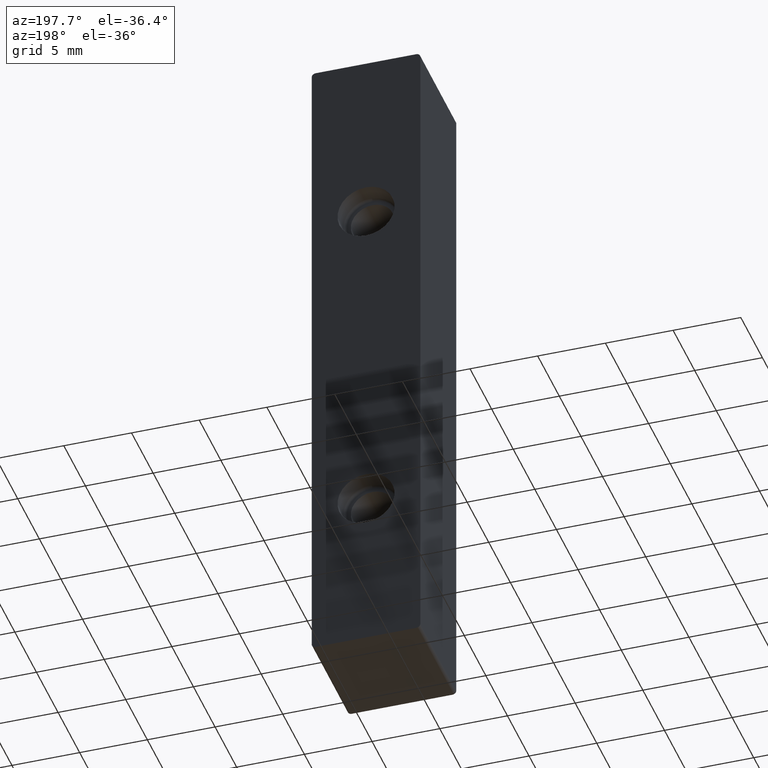
[diagram: clean part render]
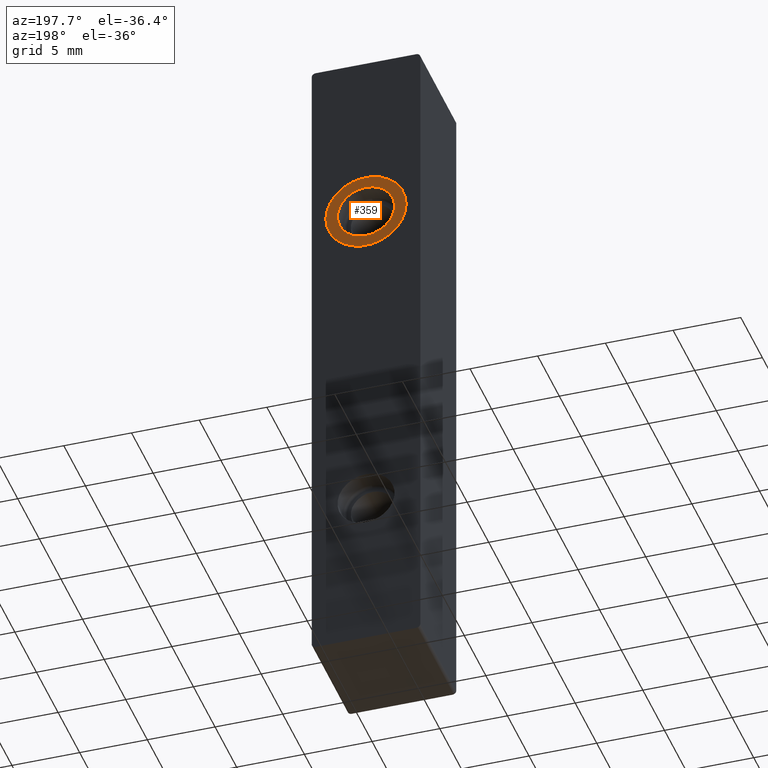
[diagram: same view with one face highlighted and labeled with its STEP entity id]
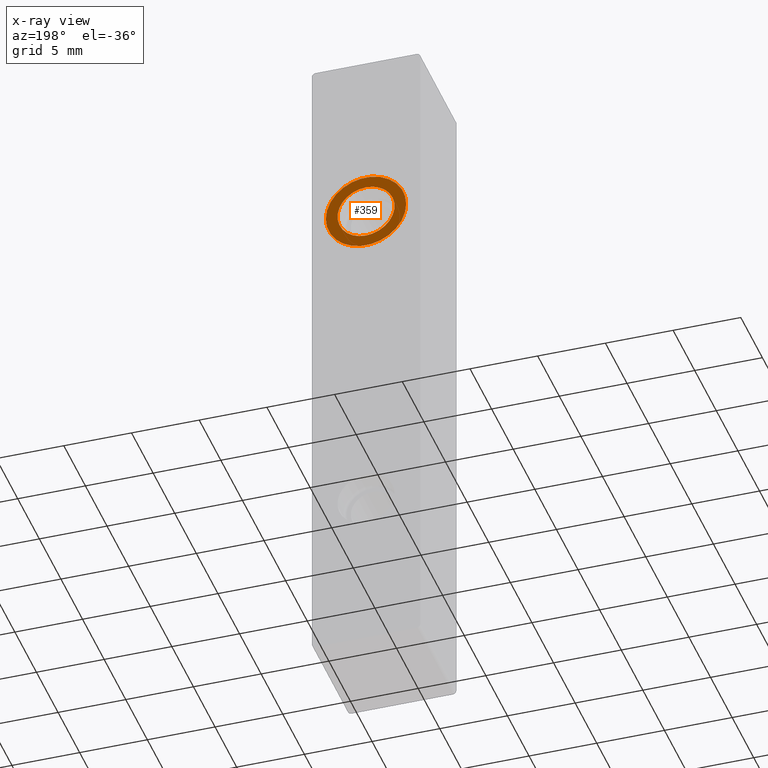
[diagram: x-ray of the same camera — body ghosted, the highlighted face saturated]
A machine part, auxiliary view. The second image highlights one B-rep face of the part: STEP entity #359.
The next image is the same camera in x-ray: the body ghosted, the highlighted face saturated — about 0% of this face is hidden behind the body in this view.
In plain terms, the highlighted planar face has unit normal (0, -1, 0).
Its self-contained STEP definition (entity closure, byte-faithful):
#32=FACE_BOUND('',#82,.T.);
#53=FACE_OUTER_BOUND('',#81,.T.);
#81=EDGE_LOOP('',(#326));
#82=EDGE_LOOP('',(#327));
#147=CIRCLE('',#408,2.106225291135);
#153=CIRCLE('',#418,2.96442687);
#177=VERTEX_POINT('',#603);
#183=VERTEX_POINT('',#623);
#217=EDGE_CURVE('',#177,#177,#147,.T.);
#227=EDGE_CURVE('',#183,#183,#153,.T.);
#326=ORIENTED_EDGE('',*,*,#227,.T.);
#327=ORIENTED_EDGE('',*,*,#217,.T.);
#338=PLANE('',#425);
#359=ADVANCED_FACE('',(#53,#32),#338,.F.);
#408=AXIS2_PLACEMENT_3D('',#604,#494,#495);
#418=AXIS2_PLACEMENT_3D('',#624,#518,#519);
#425=AXIS2_PLACEMENT_3D('',#639,#537,#538);
#494=DIRECTION('center_axis',(0.,-1.,0.));
#495=DIRECTION('ref_axis',(0.,0.,-1.));
#518=DIRECTION('center_axis',(0.,1.,0.));
#519=DIRECTION('ref_axis',(-1.,1.22464679914735E-16,9.76020241428709E-17));
#537=DIRECTION('center_axis',(0.,-1.,0.));
#538=DIRECTION('ref_axis',(1.,0.,0.));
#603=CARTESIAN_POINT('',(-23.028614677314,10.8896525467827,-19.9821128716456));
#604=CARTESIAN_POINT('Origin',(-23.028614677314,10.8896525467827,-22.0883381627806));
#623=CARTESIAN_POINT('',(-20.064187807314,10.8896525467827,-22.0883381627806));
#624=CARTESIAN_POINT('Origin',(-23.028614677314,10.8896525467827,-22.0883381627806));
#639=CARTESIAN_POINT('Origin',(-23.0285287518975,10.8896525467827,-34.249469769873));